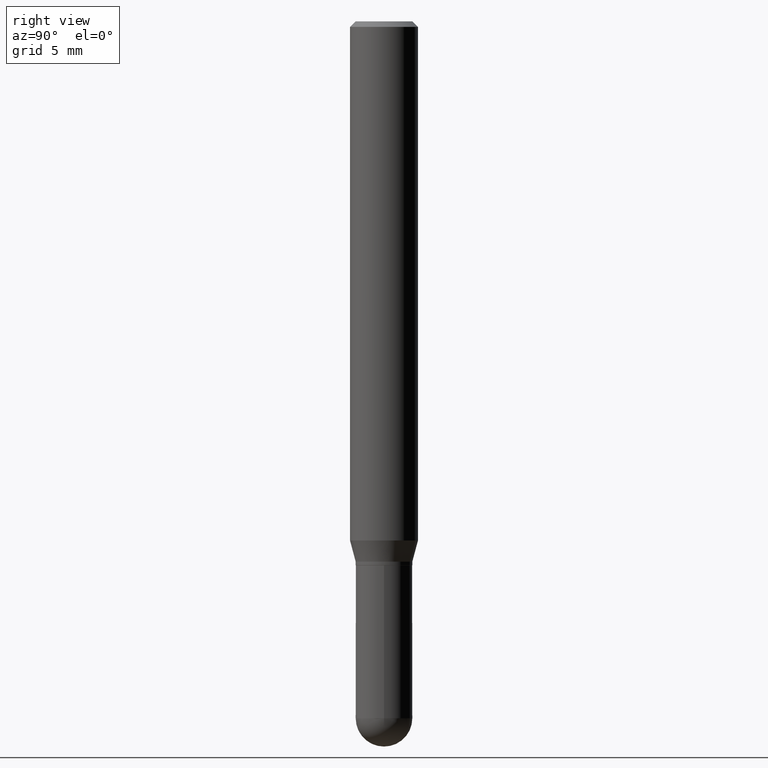
[diagram: clean part render]
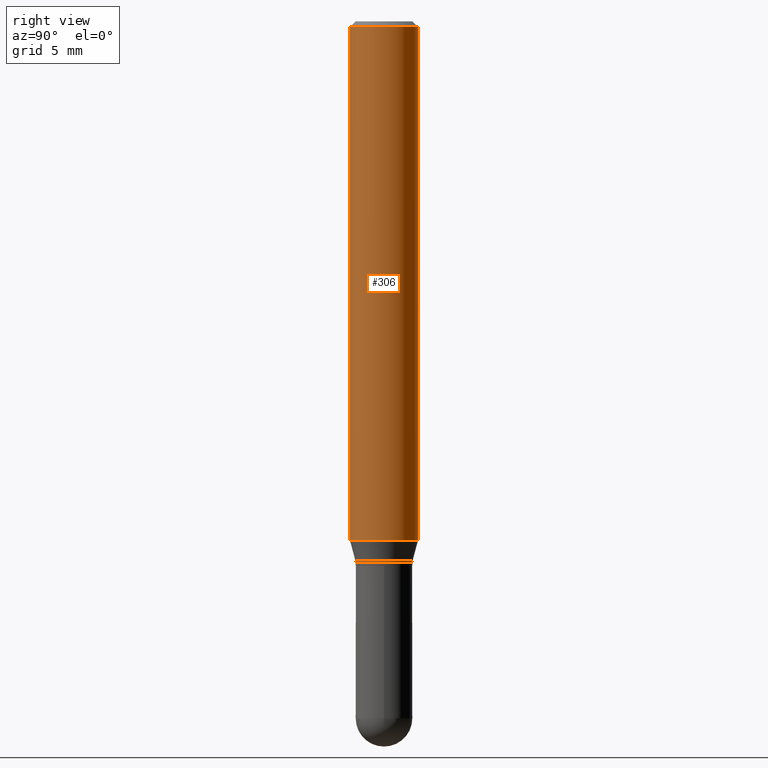
[diagram: same view with one face highlighted and labeled with its STEP entity id]
A machine part, right view. The second image highlights one B-rep face of the part: STEP entity #306.
In plain terms, the highlighted cylindrical surface (edge-blend (fillet) strip) has radius 2.3813 mm, axis along (-0, 0, 1).
Its self-contained STEP definition (entity closure, byte-faithful):
#2 = EDGE_LOOP ( 'NONE', ( #466, #29, #396, #294 ) ) ;
#5 = CIRCLE ( 'NONE', #193, 0.09375000000000001388 ) ;
#20 = CIRCLE ( 'NONE', #318, 0.09375000000000001388 ) ;
#29 = ORIENTED_EDGE ( 'NONE', *, *, #401, .T. ) ;
#70 = VERTEX_POINT ( 'NONE', #473 ) ;
#72 = VECTOR ( 'NONE', #410, 39.37007874015748143 ) ;
#84 = CARTESIAN_POINT ( 'NONE',  ( 0.000000000000000000, 0.000000000000000000, 0.000000000000000000 ) ) ;
#119 = LINE ( 'NONE', #157, #289 ) ;
#133 = VERTEX_POINT ( 'NONE', #341 ) ;
#157 = CARTESIAN_POINT ( 'NONE',  ( 6.661338147750938256E-16, 0.09375000000000001388, -3.272857949134747847E-16 ) ) ;
#159 = AXIS2_PLACEMENT_3D ( 'NONE', #84, #472, #242 ) ;
#167 = EDGE_CURVE ( 'NONE', #133, #179, #5, .T. ) ;
#169 = CARTESIAN_POINT ( 'NONE',  ( -6.546527510330875041E-16, -0.09375000000000001388, 3.272857949134747847E-16 ) ) ;
#179 = VERTEX_POINT ( 'NONE', #345 ) ;
#180 = DIRECTION ( 'NONE',  ( -2.445771070544258513E-29, 3.491048479077063976E-15, 1.000000000000000000 ) ) ;
#189 = EDGE_CURVE ( 'NONE', #376, #133, #449, .T. ) ;
#193 = AXIS2_PLACEMENT_3D ( 'NONE', #269, #180, #295 ) ;
#230 = FACE_OUTER_BOUND ( 'NONE', #2, .T. ) ;
#242 = DIRECTION ( 'NONE',  ( -6.982962677686265922E-15, -1.000000000000000000, 3.491048479077063976E-15 ) ) ;
#252 = DIRECTION ( 'NONE',  ( -2.445771070544258232E-29, 3.491048479077063581E-15, 1.000000000000000000 ) ) ;
#269 = CARTESIAN_POINT ( 'NONE',  ( 3.668656605816431051E-31, -5.236572718615656977E-17, -0.01500000000000017465 ) ) ;
#289 = VECTOR ( 'NONE', #252, 39.37007874015748143 ) ;
#294 = ORIENTED_EDGE ( 'NONE', *, *, #189, .F. ) ;
#295 = DIRECTION ( 'NONE',  ( -6.982962677686265922E-15, -1.000000000000000000, 3.483106191921935160E-15 ) ) ;
#306 = ADVANCED_FACE ( 'NONE', ( #230 ), #503, .T. ) ;
#318 = AXIS2_PLACEMENT_3D ( 'NONE', #330, #482, #411 ) ;
#330 = CARTESIAN_POINT ( 'NONE',  ( 3.501349734392323234E-29, -4.997761978698656219E-15, -1.431593404861545960 ) ) ;
#341 = CARTESIAN_POINT ( 'NONE',  ( -6.546527510330871097E-16, -0.09375000000000005551, -0.01499999999999984852 ) ) ;
#345 = CARTESIAN_POINT ( 'NONE',  ( 6.661338147751291272E-16, 0.09374999999999995837, -0.01500000000000050078 ) ) ;
#376 = VERTEX_POINT ( 'NONE', #441 ) ;
#396 = ORIENTED_EDGE ( 'NONE', *, *, #167, .F. ) ;
#401 = EDGE_CURVE ( 'NONE', #70, #179, #119, .T. ) ;
#410 = DIRECTION ( 'NONE',  ( -2.445771070544258232E-29, 3.491048479077063581E-15, 1.000000000000000000 ) ) ;
#411 = DIRECTION ( 'NONE',  ( -6.982962677686265922E-15, -1.000000000000000000, 2.913971193241880372E-15 ) ) ;
#441 = CARTESIAN_POINT ( 'NONE',  ( -6.546527510330523012E-16, -0.09375000000000500988, -1.431593404861545737 ) ) ;
#449 = LINE ( 'NONE', #169, #72 ) ;
#466 = ORIENTED_EDGE ( 'NONE', *, *, #497, .T. ) ;
#472 = DIRECTION ( 'NONE',  ( -2.445771070544258513E-29, 3.491048479077063976E-15, 1.000000000000000000 ) ) ;
#473 = CARTESIAN_POINT ( 'NONE',  ( 6.661338147751288313E-16, 0.09374999999999500400, -1.431593404861546182 ) ) ;
#482 = DIRECTION ( 'NONE',  ( -2.445771070544258513E-29, 3.491048479077063976E-15, 1.000000000000000000 ) ) ;
#497 = EDGE_CURVE ( 'NONE', #376, #70, #20, .T. ) ;
#503 = CYLINDRICAL_SURFACE ( 'NONE', #159, 0.09375000000000001388 ) ;